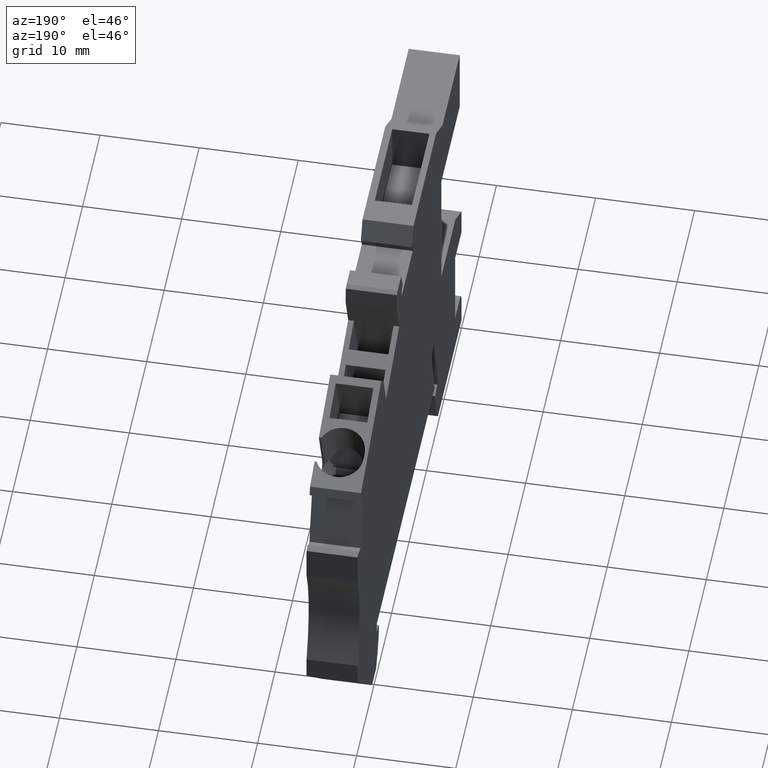
[diagram: clean part render]
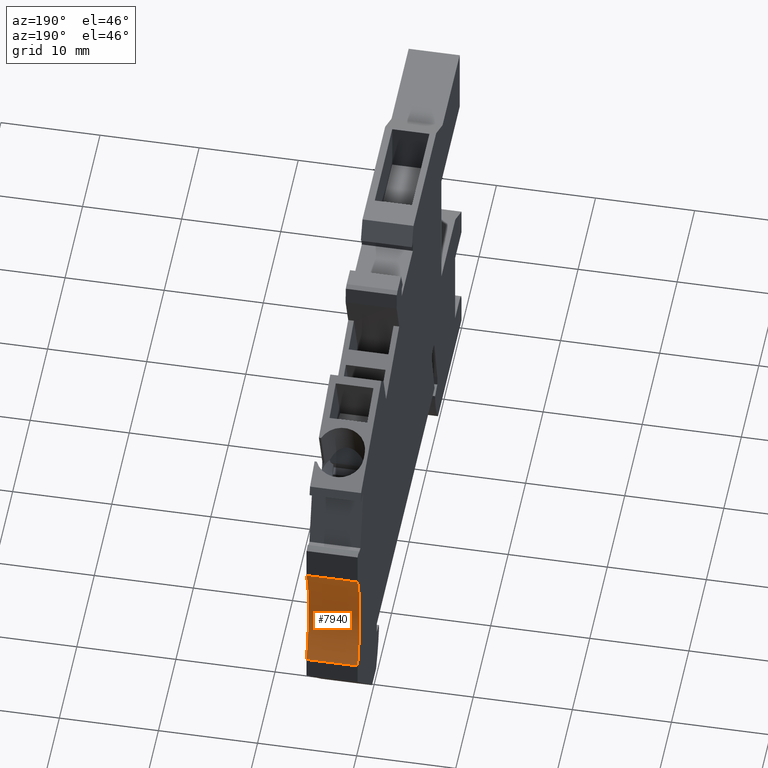
[diagram: same view with one face highlighted and labeled with its STEP entity id]
A machine part, auxiliary view. The second image highlights one B-rep face of the part: STEP entity #7940.
In plain terms, the highlighted cylindrical surface (partial cylindrical patch) has radius 15 mm, axis along (1, 0, -0).
Its self-contained STEP definition (entity closure, byte-faithful):
#2570=CARTESIAN_POINT('',(63.2559507241477,12.836805014957,
-1.4432899320127E-14));
#2580=VERTEX_POINT('',#2570);
#2610=CARTESIAN_POINT('',(63.2559507241477,12.836805014957,
-1.4210854715202E-14));
#2620=DIRECTION('',(0.,0.,1.));
#2630=VECTOR('',#2620,1.);
#2640=LINE('',#2610,#2630);
#2650=CARTESIAN_POINT('',(63.2559507241477,12.836805014957,
-5.14999999999785));
#2660=VERTEX_POINT('',#2650);
#2670=EDGE_CURVE('',#2660,#2580,#2640,.T.);
#3900=CARTESIAN_POINT('',(61.7935186032859,24.7473588346528,
-5.14999999999819));
#3910=VERTEX_POINT('',#3900);
#3940=CARTESIAN_POINT('',(61.7935186032859,24.7473588346528,
-1.4210854715202E-14));
#3950=DIRECTION('',(0.,0.,1.));
#3960=VECTOR('',#3950,1.);
#3970=LINE('',#3940,#3960);
#3980=CARTESIAN_POINT('',(61.7935186032859,24.7473588346529,
-1.4432899320127E-14));
#3990=VERTEX_POINT('',#3980);
#4000=EDGE_CURVE('',#3910,#3990,#3970,.T.);
#7710=CARTESIAN_POINT('',(76.1699882756172,20.4675083979509,
-2.48689957516035E-14));
#7720=DIRECTION('',(0.,0.,1.));
#7730=DIRECTION('',(0.992546151641322,0.121869343405148,0.));
#7740=AXIS2_PLACEMENT_3D('',#7710,#7720,#7730);
#7750=CYLINDRICAL_SURFACE('',#7740,15.);
#7760=CARTESIAN_POINT('',(76.1699882756172,20.4675083979509,
-5.14999999999744));
#7770=DIRECTION('',(0.,0.,1.));
#7780=DIRECTION('',(1.,0.,0.));
#7790=AXIS2_PLACEMENT_3D('',#7760,#7770,#7780);
#7800=CIRCLE('',#7790,15.);
#7810=EDGE_CURVE('',#3910,#2660,#7800,.T.);
#7820=ORIENTED_EDGE('',*,*,#7810,.F.);
#7830=ORIENTED_EDGE('',*,*,#2670,.F.);
#7840=CARTESIAN_POINT('',(76.1699882756172,20.4675083979509,
-1.4210854715202E-14));
#7850=DIRECTION('',(0.,0.,1.));
#7860=DIRECTION('',(0.992546151641322,0.121869343405147,0.));
#7870=AXIS2_PLACEMENT_3D('',#7840,#7850,#7860);
#7880=CIRCLE('',#7870,15.);
#7890=EDGE_CURVE('',#3990,#2580,#7880,.T.);
#7900=ORIENTED_EDGE('',*,*,#7890,.T.);
#7910=ORIENTED_EDGE('',*,*,#4000,.T.);
#7920=EDGE_LOOP('',(#7910,#7900,#7830,#7820));
#7930=FACE_OUTER_BOUND('',#7920,.T.);
#7940=ADVANCED_FACE('',(#7930),#7750,.F.);